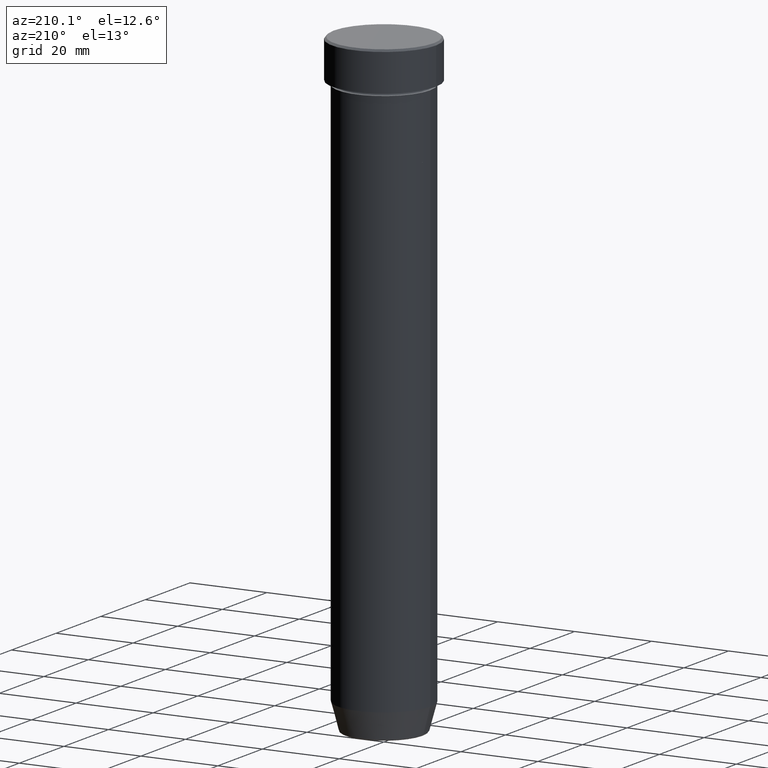
[diagram: clean part render]
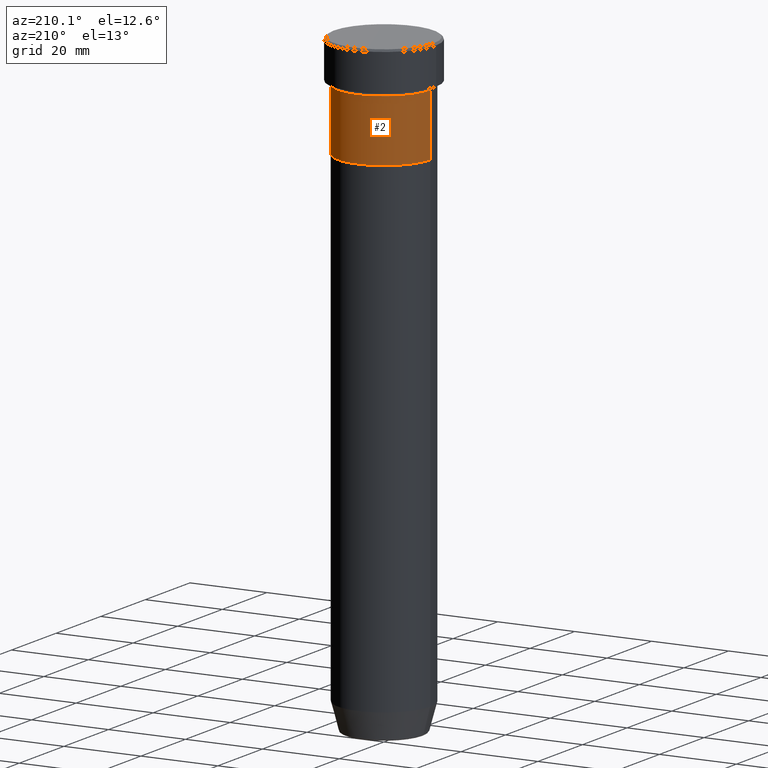
[diagram: same view with one face highlighted and labeled with its STEP entity id]
A machine part, auxiliary view. The second image highlights one B-rep face of the part: STEP entity #2.
In plain terms, the highlighted cylindrical surface (partial cylindrical patch) has radius 12 mm, axis along (-0, -0, 1).
Its self-contained STEP definition (entity closure, byte-faithful):
#2 = ADVANCED_FACE ( 'NONE', ( #145 ), #514, .T. ) ;
#18 = CARTESIAN_POINT ( 'NONE',  ( 12.00000000000000000, 0.000000000000000000, -11.00000000000000000 ) ) ;
#20 = EDGE_CURVE ( 'NONE', #39, #230, #48, .T. ) ;
#34 = ORIENTED_EDGE ( 'NONE', *, *, #526, .T. ) ;
#35 = EDGE_CURVE ( 'NONE', #39, #263, #57, .T. ) ;
#39 = VERTEX_POINT ( 'NONE', #249 ) ;
#48 = CIRCLE ( 'NONE', #536, 12.00000000000000000 ) ;
#57 = LINE ( 'NONE', #512, #511 ) ;
#85 = DIRECTION ( 'NONE',  ( 1.000000000000000000, 0.000000000000000000, 0.000000000000000000 ) ) ;
#93 = CARTESIAN_POINT ( 'NONE',  ( -12.00000000000000000, 1.469576158976823947E-15, 0.000000000000000000 ) ) ;
#104 = CARTESIAN_POINT ( 'NONE',  ( 0.000000000000000000, 0.000000000000000000, 0.000000000000000000 ) ) ;
#107 = DIRECTION ( 'NONE',  ( 1.000000000000000000, 0.000000000000000000, 0.000000000000000000 ) ) ;
#140 = ORIENTED_EDGE ( 'NONE', *, *, #20, .T. ) ;
#145 = FACE_OUTER_BOUND ( 'NONE', #592, .T. ) ;
#152 = DIRECTION ( 'NONE',  ( -0.000000000000000000, -0.000000000000000000, 1.000000000000000000 ) ) ;
#155 = DIRECTION ( 'NONE',  ( 1.000000000000000000, 0.000000000000000000, 0.000000000000000000 ) ) ;
#168 = VECTOR ( 'NONE', #445, 1000.000000000000000 ) ;
#226 = LINE ( 'NONE', #93, #168 ) ;
#230 = VERTEX_POINT ( 'NONE', #467 ) ;
#249 = CARTESIAN_POINT ( 'NONE',  ( 12.00000000000000000, 0.000000000000000000, -27.00000000000000000 ) ) ;
#263 = VERTEX_POINT ( 'NONE', #18 ) ;
#264 = EDGE_CURVE ( 'NONE', #263, #333, #423, .T. ) ;
#289 = CARTESIAN_POINT ( 'NONE',  ( 0.000000000000000000, 0.000000000000000000, -27.00000000000000000 ) ) ;
#305 = AXIS2_PLACEMENT_3D ( 'NONE', #104, #562, #155 ) ;
#307 = DIRECTION ( 'NONE',  ( -0.000000000000000000, -0.000000000000000000, 1.000000000000000000 ) ) ;
#318 = ORIENTED_EDGE ( 'NONE', *, *, #35, .F. ) ;
#333 = VERTEX_POINT ( 'NONE', #427 ) ;
#380 = AXIS2_PLACEMENT_3D ( 'NONE', #401, #307, #85 ) ;
#401 = CARTESIAN_POINT ( 'NONE',  ( 0.000000000000000000, 0.000000000000000000, -11.00000000000000000 ) ) ;
#423 = CIRCLE ( 'NONE', #380, 12.00000000000000000 ) ;
#427 = CARTESIAN_POINT ( 'NONE',  ( -12.00000000000000000, 1.469576158976823947E-15, -11.00000000000000000 ) ) ;
#445 = DIRECTION ( 'NONE',  ( -0.000000000000000000, -0.000000000000000000, 1.000000000000000000 ) ) ;
#464 = DIRECTION ( 'NONE',  ( -0.000000000000000000, -0.000000000000000000, 1.000000000000000000 ) ) ;
#467 = CARTESIAN_POINT ( 'NONE',  ( -12.00000000000000000, 1.469576158976823947E-15, -27.00000000000000000 ) ) ;
#493 = ORIENTED_EDGE ( 'NONE', *, *, #264, .F. ) ;
#511 = VECTOR ( 'NONE', #152, 1000.000000000000000 ) ;
#512 = CARTESIAN_POINT ( 'NONE',  ( 12.00000000000000000, 0.000000000000000000, 0.000000000000000000 ) ) ;
#514 = CYLINDRICAL_SURFACE ( 'NONE', #305, 12.00000000000000000 ) ;
#526 = EDGE_CURVE ( 'NONE', #230, #333, #226, .T. ) ;
#536 = AXIS2_PLACEMENT_3D ( 'NONE', #289, #464, #107 ) ;
#562 = DIRECTION ( 'NONE',  ( -0.000000000000000000, -0.000000000000000000, 1.000000000000000000 ) ) ;
#592 = EDGE_LOOP ( 'NONE', ( #140, #34, #493, #318 ) ) ;